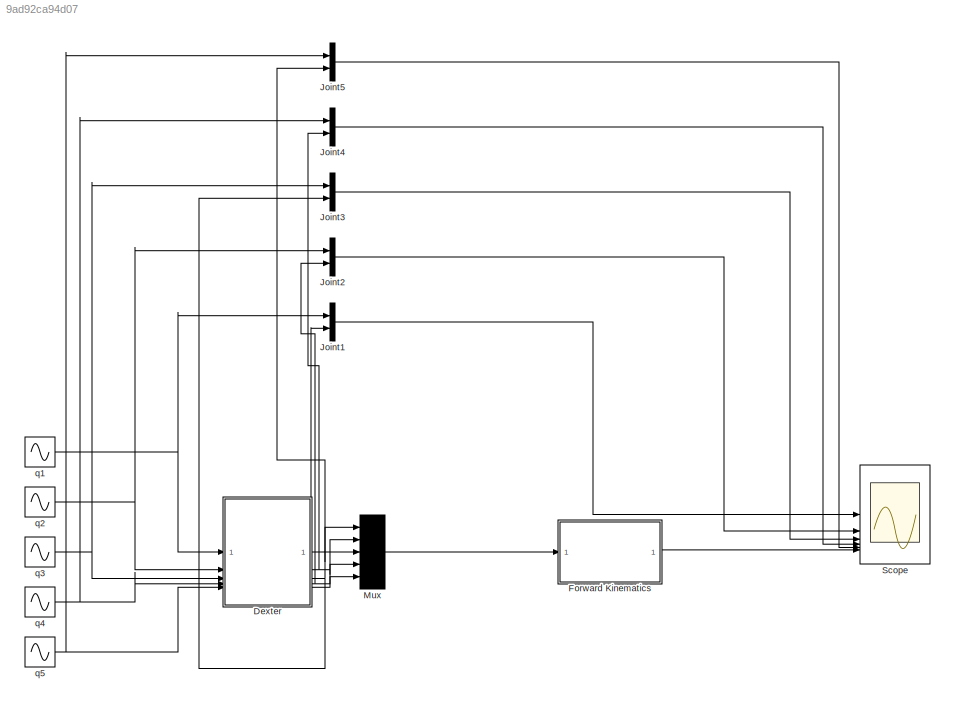
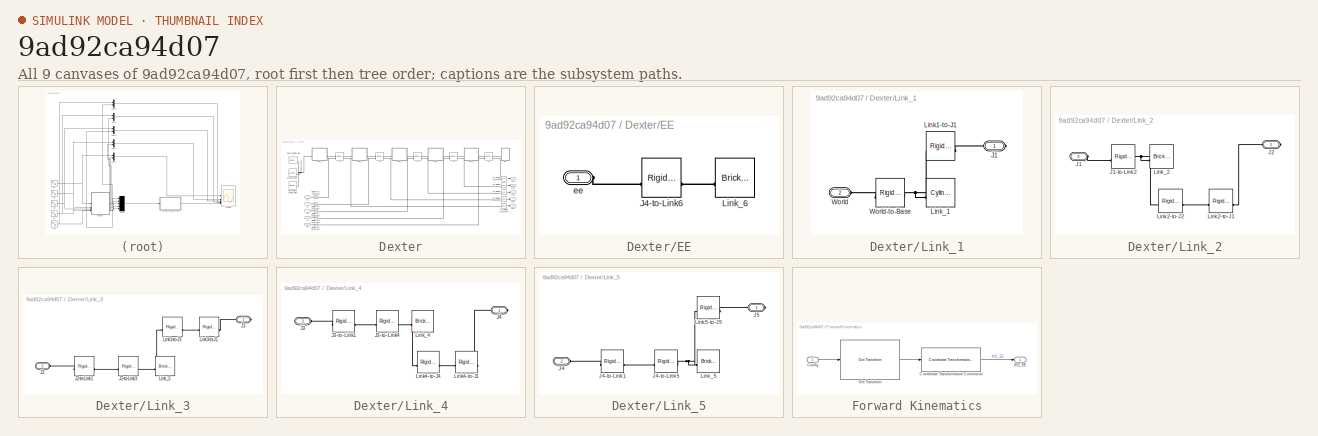
[diagram: thumbnail index - all 9 canvases of the model, root first then tree order]
MODEL slx_9ad92ca94d07
KIND model
CONFIG AbsTol = auto
CONFIG EnableMultiTasking = off
CONFIG FixedStep = auto
CONFIG MaxStep = auto
CONFIG MinStep = auto
CONFIG RelTol = 1e-3
CONFIG SampleTimeConstraint = Unconstrained
CONFIG SolverName = VariableStepAuto
CONFIG StartTime = 0.0
CONFIG StopTime = 10.0
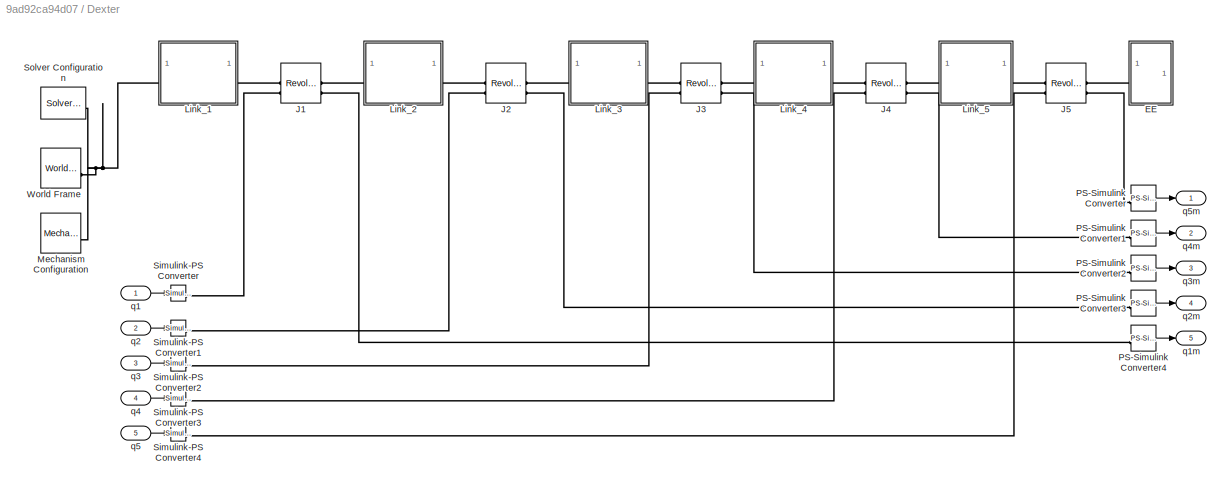
BLOCK [SubSystem] Dexter
BLOCK [SubSystem] Dexter/EE
BLOCK [Reference] Dexter/EE/J4-to-Link6  REF=sm_lib/Frames and
Transforms/Rigid
Transform
  SourceBlock = sm_lib/Frames and\nTransforms/Rigid\nTransform
  SourceType = Rigid\nTransform
BLOCK [Reference] Dexter/EE/Link_6  REF=sm_lib/Body Elements/Brick Solid
  SourceBlock = sm_lib/Body Elements/Brick Solid
  SourceType = Brick Solid
BLOCK [PMIOPort] Dexter/EE/ee
  Side = Left
BLOCK [Reference] Dexter/J1  REF=sm_lib/Joints/Revolute Joint
  SourceBlock = sm_lib/Joints/Revolute Joint
  SourceType = Revolute Joint
BLOCK [Reference] Dexter/J2  REF=sm_lib/Joints/Revolute Joint
  SourceBlock = sm_lib/Joints/Revolute Joint
  SourceType = Revolute Joint
BLOCK [Reference] Dexter/J3  REF=sm_lib/Joints/Revolute Joint
  SourceBlock = sm_lib/Joints/Revolute Joint
  SourceType = Revolute Joint
BLOCK [Reference] Dexter/J4  REF=sm_lib/Joints/Revolute Joint
  SourceBlock = sm_lib/Joints/Revolute Joint
  SourceType = Revolute Joint
BLOCK [Reference] Dexter/J5  REF=sm_lib/Joints/Revolute Joint
  SourceBlock = sm_lib/Joints/Revolute Joint
  SourceType = Revolute Joint
BLOCK [SubSystem] Dexter/Link_1
BLOCK [PMIOPort] Dexter/Link_1/J1
  Side = Right
BLOCK [Reference] Dexter/Link_1/Link1-to-J1  REF=sm_lib/Frames and
Transforms/Rigid
Transform
  SourceBlock = sm_lib/Frames and\nTransforms/Rigid\nTransform
  SourceType = Rigid\nTransform
BLOCK [Reference] Dexter/Link_1/Link_1  REF=sm_lib/Body Elements/Cylindrical Solid
  SourceBlock = sm_lib/Body Elements/Cylindrical Solid
  SourceType = Cylindrical Solid
BLOCK [PMIOPort] Dexter/Link_1/World
  Port = 2
  Side = Left
BLOCK [Reference] Dexter/Link_1/World-to-Base  REF=sm_lib/Frames and
Transforms/Rigid
Transform
  SourceBlock = sm_lib/Frames and\nTransforms/Rigid\nTransform
  SourceType = Rigid\nTransform
BLOCK [SubSystem] Dexter/Link_2
BLOCK [PMIOPort] Dexter/Link_2/J1
  Port = 2
  Side = Left
BLOCK [Reference] Dexter/Link_2/J1-to-Link2  REF=sm_lib/Frames and
Transforms/Rigid
Transform
  SourceBlock = sm_lib/Frames and\nTransforms/Rigid\nTransform
  SourceType = Rigid\nTransform
BLOCK [PMIOPort] Dexter/Link_2/J2
  Side = Right
BLOCK [Reference] Dexter/Link_2/Link2-to-J1  REF=sm_lib/Frames and
Transforms/Rigid
Transform
  SourceBlock = sm_lib/Frames and\nTransforms/Rigid\nTransform
  SourceType = Rigid\nTransform
BLOCK [Reference] Dexter/Link_2/Link2-to-J2  REF=sm_lib/Frames and
Transforms/Rigid
Transform
  SourceBlock = sm_lib/Frames and\nTransforms/Rigid\nTransform
  SourceType = Rigid\nTransform
BLOCK [Reference] Dexter/Link_2/Link_2  REF=sm_lib/Body Elements/Brick Solid
  SourceBlock = sm_lib/Body Elements/Brick Solid
  SourceType = Brick Solid
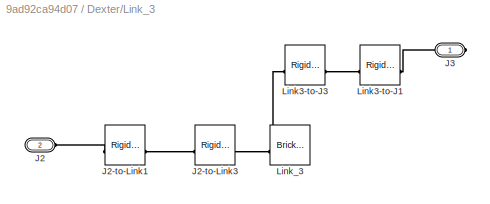
BLOCK [SubSystem] Dexter/Link_3
BLOCK [PMIOPort] Dexter/Link_3/J2
  Port = 2
  Side = Left
BLOCK [Reference] Dexter/Link_3/J2-to-Link1  REF=sm_lib/Frames and
Transforms/Rigid
Transform
  SourceBlock = sm_lib/Frames and\nTransforms/Rigid\nTransform
  SourceType = Rigid\nTransform
BLOCK [Reference] Dexter/Link_3/J2-to-Link3  REF=sm_lib/Frames and
Transforms/Rigid
Transform
  SourceBlock = sm_lib/Frames and\nTransforms/Rigid\nTransform
  SourceType = Rigid\nTransform
BLOCK [PMIOPort] Dexter/Link_3/J3
  Side = Right
BLOCK [Reference] Dexter/Link_3/Link3-to-J1  REF=sm_lib/Frames and
Transforms/Rigid
Transform
  SourceBlock = sm_lib/Frames and\nTransforms/Rigid\nTransform
  SourceType = Rigid\nTransform
BLOCK [Reference] Dexter/Link_3/Link3-to-J3  REF=sm_lib/Frames and
Transforms/Rigid
Transform
  SourceBlock = sm_lib/Frames and\nTransforms/Rigid\nTransform
  SourceType = Rigid\nTransform
BLOCK [Reference] Dexter/Link_3/Link_3  REF=sm_lib/Body Elements/Brick Solid
  SourceBlock = sm_lib/Body Elements/Brick Solid
  SourceType = Brick Solid
BLOCK [SubSystem] Dexter/Link_4
BLOCK [PMIOPort] Dexter/Link_4/J3
  Port = 2
  Side = Left
BLOCK [Reference] Dexter/Link_4/J3-to-Link1  REF=sm_lib/Frames and
Transforms/Rigid
Transform
  SourceBlock = sm_lib/Frames and\nTransforms/Rigid\nTransform
  SourceType = Rigid\nTransform
BLOCK [Reference] Dexter/Link_4/J3-to-Link4  REF=sm_lib/Frames and
Transforms/Rigid
Transform
  SourceBlock = sm_lib/Frames and\nTransforms/Rigid\nTransform
  SourceType = Rigid\nTransform
BLOCK [PMIOPort] Dexter/Link_4/J4
  Side = Right
BLOCK [Reference] Dexter/Link_4/Link4-to-J1  REF=sm_lib/Frames and
Transforms/Rigid
Transform
  SourceBlock = sm_lib/Frames and\nTransforms/Rigid\nTransform
  SourceType = Rigid\nTransform
BLOCK [Reference] Dexter/Link_4/Link4-to-J4  REF=sm_lib/Frames and
Transforms/Rigid
Transform
  SourceBlock = sm_lib/Frames and\nTransforms/Rigid\nTransform
  SourceType = Rigid\nTransform
BLOCK [Reference] Dexter/Link_4/Link_4  REF=sm_lib/Body Elements/Brick Solid
  SourceBlock = sm_lib/Body Elements/Brick Solid
  SourceType = Brick Solid
BLOCK [SubSystem] Dexter/Link_5
BLOCK [PMIOPort] Dexter/Link_5/J4
  Port = 2
  Side = Left
BLOCK [Reference] Dexter/Link_5/J4-to-Link1  REF=sm_lib/Frames and
Transforms/Rigid
Transform
  SourceBlock = sm_lib/Frames and\nTransforms/Rigid\nTransform
  SourceType = Rigid\nTransform
BLOCK [Reference] Dexter/Link_5/J4-to-Link5  REF=sm_lib/Frames and
Transforms/Rigid
Transform
  SourceBlock = sm_lib/Frames and\nTransforms/Rigid\nTransform
  SourceType = Rigid\nTransform
BLOCK [PMIOPort] Dexter/Link_5/J5
  Side = Right
BLOCK [Reference] Dexter/Link_5/Link5-to-J5  REF=sm_lib/Frames and
Transforms/Rigid
Transform
  SourceBlock = sm_lib/Frames and\nTransforms/Rigid\nTransform
  SourceType = Rigid\nTransform
BLOCK [Reference] Dexter/Link_5/Link_5  REF=sm_lib/Body Elements/Brick Solid
  SourceBlock = sm_lib/Body Elements/Brick Solid
  SourceType = Brick Solid
BLOCK [Reference] Dexter/Mechanism Configuration  REF=sm_lib/Utilities/Mechanism
Configuration
  SourceBlock = sm_lib/Utilities/Mechanism\nConfiguration
  SourceType = Mechanism\nConfiguration
BLOCK [Reference] Dexter/PS-Simulink Converter  REF=nesl_utility/PS-Simulink
Converter
  SourceBlock = nesl_utility/PS-Simulink\nConverter
  SourceType = PS-Simulink\nConverter
BLOCK [Reference] Dexter/PS-Simulink Converter1  REF=nesl_utility/PS-Simulink
Converter
  SourceBlock = nesl_utility/PS-Simulink\nConverter
  SourceType = PS-Simulink\nConverter
BLOCK [Reference] Dexter/PS-Simulink Converter2  REF=nesl_utility/PS-Simulink
Converter
  SourceBlock = nesl_utility/PS-Simulink\nConverter
  SourceType = PS-Simulink\nConverter
BLOCK [Reference] Dexter/PS-Simulink Converter3  REF=nesl_utility/PS-Simulink
Converter
  SourceBlock = nesl_utility/PS-Simulink\nConverter
  SourceType = PS-Simulink\nConverter
BLOCK [Reference] Dexter/PS-Simulink Converter4  REF=nesl_utility/PS-Simulink
Converter
  SourceBlock = nesl_utility/PS-Simulink\nConverter
  SourceType = PS-Simulink\nConverter
BLOCK [Reference] Dexter/Simulink-PS Converter  REF=nesl_utility/Simulink-PS
Converter
  SourceBlock = nesl_utility/Simulink-PS\nConverter
  SourceType = Simulink-PS\nConverter
BLOCK [Reference] Dexter/Simulink-PS Converter1  REF=nesl_utility/Simulink-PS
Converter
  SourceBlock = nesl_utility/Simulink-PS\nConverter
  SourceType = Simulink-PS\nConverter
BLOCK [Reference] Dexter/Simulink-PS Converter2  REF=nesl_utility/Simulink-PS
Converter
  SourceBlock = nesl_utility/Simulink-PS\nConverter
  SourceType = Simulink-PS\nConverter
BLOCK [Reference] Dexter/Simulink-PS Converter3  REF=nesl_utility/Simulink-PS
Converter
  SourceBlock = nesl_utility/Simulink-PS\nConverter
  SourceType = Simulink-PS\nConverter
BLOCK [Reference] Dexter/Simulink-PS Converter4  REF=nesl_utility/Simulink-PS
Converter
  SourceBlock = nesl_utility/Simulink-PS\nConverter
  SourceType = Simulink-PS\nConverter
BLOCK [Reference] Dexter/Solver Configuration  REF=nesl_utility/Solver
Configuration
  SourceBlock = nesl_utility/Solver\nConfiguration
  SourceType = Solver\nConfiguration
BLOCK [Reference] Dexter/World Frame  REF=sm_lib/Frames and
Transforms/World Frame
  SourceBlock = sm_lib/Frames and\nTransforms/World Frame
  SourceType = World Frame
BLOCK [Inport] Dexter/q1
BLOCK [Outport] Dexter/q1m
  Port = 5
BLOCK [Inport] Dexter/q2
  Port = 2
BLOCK [Outport] Dexter/q2m
  Port = 4
BLOCK [Inport] Dexter/q3
  Port = 3
BLOCK [Outport] Dexter/q3m
  Port = 3
BLOCK [Inport] Dexter/q4
  Port = 4
BLOCK [Outport] Dexter/q4m
  Port = 2
BLOCK [Inport] Dexter/q5
  Port = 5
BLOCK [Outport] Dexter/q5m
BLOCK [SubSystem] Forward Kinematics
BLOCK [Inport] Forward Kinematics/Config
BLOCK [Reference] Forward Kinematics/Coordinate Transformation Conversion  REF=robotcorelib/Coordinate Transformation Conversion
  LibrarySourceBlock = robotutilslib/Coordinate Transformation Conversion
  SourceBlock = robotcorelib/Coordinate Transformation Conversion
  SourceType = robotics.slcore.internal.block.CoordinateTransformationConversion
BLOCK [Reference] Forward Kinematics/Get Transform  REF=robotmaniplib/Get Transform
  SourceBlock = robotmaniplib/Get Transform
  SourceType = Get Transform
BLOCK [Outport] Forward Kinematics/XYZ_EE
BLOCK [Mux] Joint1
  DisplayOption = bar
  Inputs = 2
BLOCK [Mux] Joint2
  DisplayOption = bar
  Inputs = 2
BLOCK [Mux] Joint3
  DisplayOption = bar
  Inputs = 2
BLOCK [Mux] Joint4
  DisplayOption = bar
  Inputs = 2
BLOCK [Mux] Joint5
  DisplayOption = bar
  Inputs = 2
BLOCK [Mux] Mux
  DisplayOption = bar
  Inputs = 5
BLOCK [Scope] Scope
  Floating = off
  NumInputPorts = 6
  ScopeSpecificationString = Simulink.scopes.TimeScopeBlockCfg('CurrentConfiguration', extmgr.ConfigurationSet(extmgr.Configuration('Core','General UI',true),extmgr.Configuration('Core','Source UI',true),extmgr.Configuration('Sources','WiredSimulink',true),extmgr.Configuration('Visuals','Time Domain',true,'SerializedDisplays',{struct('MinYLimReal','-7.75','MaxYLimReal','7.75','YLabelReal','','MinYLimMag','0.00000','MaxYLimMag...<+5446ch>
BLOCK [Sin] q1
  Amplitude = 5.5
  SampleTime = 0
BLOCK [Sin] q2
  Amplitude = 5.5
  Frequency = 0.7
  SampleTime = 0
BLOCK [Sin] q3
  Amplitude = 5.5
  Frequency = 0.7
  SampleTime = 0
BLOCK [Sin] q4
  Amplitude = 5.5
  Frequency = 0.5
  SampleTime = 0
BLOCK [Sin] q5
  Amplitude = 5.5
  SampleTime = 0
LINE Dexter/PS-Simulink Converter1:1 -> Dexter/q4m:1
LINE Dexter/PS-Simulink Converter2:1 -> Dexter/q3m:1
LINE Dexter/PS-Simulink Converter3:1 -> Dexter/q2m:1
LINE Dexter/PS-Simulink Converter4:1 -> Dexter/q1m:1
LINE Dexter/PS-Simulink Converter:1 -> Dexter/q5m:1
LINE Dexter/q1:1 -> Dexter/Simulink-PS Converter:1
LINE Dexter/q2:1 -> Dexter/Simulink-PS Converter1:1
LINE Dexter/q3:1 -> Dexter/Simulink-PS Converter2:1
LINE Dexter/q4:1 -> Dexter/Simulink-PS Converter3:1
LINE Dexter/q5:1 -> Dexter/Simulink-PS Converter4:1
NET Dexter:1 -> Joint5:2, Mux:1
NET Dexter:2 -> Joint4:2, Mux:2
NET Dexter:3 -> Joint3:2, Mux:3
NET Dexter:4 -> Joint2:2, Mux:4
NET Dexter:5 -> Joint1:2, Mux:5
LINE Forward Kinematics/Config:1 -> Forward Kinematics/Get Transform:1
LINE Forward Kinematics/Coordinate Transformation Conversion:1 -> Forward Kinematics/XYZ_EE:1
LINE Forward Kinematics/Get Transform:1 -> Forward Kinematics/Coordinate Transformation Conversion:1
LINE Forward Kinematics:1 -> Scope:6
LINE Joint1:1 -> Scope:1
LINE Joint2:1 -> Scope:2
LINE Joint3:1 -> Scope:3
LINE Joint4:1 -> Scope:4
LINE Joint5:1 -> Scope:5
LINE Mux:1 -> Forward Kinematics:1
NET q1:1 -> Dexter:1, Joint1:1
NET q2:1 -> Dexter:2, Joint2:1
NET q3:1 -> Dexter:3, Joint3:1
NET q4:1 -> Dexter:4, Joint4:1
NET q5:1 -> Dexter:5, Joint5:1
PLINE Dexter/EE/J4-to-Link6:LConn1 -- Dexter/EE/ee:RConn1
PLINE Dexter/EE/J4-to-Link6:RConn1 -- Dexter/EE/Link_6:RConn1
PLINE Dexter/EE:LConn1 -- Dexter/J5:RConn1
PLINE Dexter/J1:LConn1 -- Dexter/Link_1:RConn1
PLINE Dexter/J1:LConn2 -- Dexter/Simulink-PS Converter:RConn1
PLINE Dexter/J1:RConn1 -- Dexter/Link_2:LConn1
PLINE Dexter/J1:RConn2 -- Dexter/PS-Simulink Converter4:LConn1
PLINE Dexter/J2:LConn1 -- Dexter/Link_2:RConn1
PLINE Dexter/J2:LConn2 -- Dexter/Simulink-PS Converter1:RConn1
PLINE Dexter/J2:RConn1 -- Dexter/Link_3:LConn1
PLINE Dexter/J2:RConn2 -- Dexter/PS-Simulink Converter3:LConn1
PLINE Dexter/J3:LConn1 -- Dexter/Link_3:RConn1
PLINE Dexter/J3:LConn2 -- Dexter/Simulink-PS Converter2:RConn1
PLINE Dexter/J3:RConn1 -- Dexter/Link_4:LConn1
PLINE Dexter/J3:RConn2 -- Dexter/PS-Simulink Converter2:LConn1
PLINE Dexter/J4:LConn1 -- Dexter/Link_4:RConn1
PLINE Dexter/J4:LConn2 -- Dexter/Simulink-PS Converter3:RConn1
PLINE Dexter/J4:RConn1 -- Dexter/Link_5:LConn1
PLINE Dexter/J4:RConn2 -- Dexter/PS-Simulink Converter1:LConn1
PLINE Dexter/J5:LConn1 -- Dexter/Link_5:RConn1
PLINE Dexter/J5:LConn2 -- Dexter/Simulink-PS Converter4:RConn1
PLINE Dexter/J5:RConn2 -- Dexter/PS-Simulink Converter:LConn1
PLINE Dexter/Link_1/J1:RConn1 -- Dexter/Link_1/Link1-to-J1:RConn1
PNET net1: Dexter/Link_1/Link1-to-J1:LConn1 -- Dexter/Link_1/Link_1:RConn1 -- Dexter/Link_1/World-to-Base:RConn1
PLINE Dexter/Link_1/World-to-Base:LConn1 -- Dexter/Link_1/World:RConn1
PNET net2: Dexter/Link_1:LConn1 -- Dexter/Mechanism Configuration:RConn1 -- Dexter/Solver Configuration:RConn1 -- Dexter/World Frame:RConn1
PLINE Dexter/Link_2/J1-to-Link2:LConn1 -- Dexter/Link_2/J1:RConn1
PNET net3: Dexter/Link_2/J1-to-Link2:RConn1 -- Dexter/Link_2/Link2-to-J2:LConn1 -- Dexter/Link_2/Link_2:RConn1
PLINE Dexter/Link_2/J2:RConn1 -- Dexter/Link_2/Link2-to-J1:RConn1
PLINE Dexter/Link_2/Link2-to-J1:LConn1 -- Dexter/Link_2/Link2-to-J2:RConn1
PLINE Dexter/Link_3/J2-to-Link1:LConn1 -- Dexter/Link_3/J2:RConn1
PLINE Dexter/Link_3/J2-to-Link1:RConn1 -- Dexter/Link_3/J2-to-Link3:LConn1
PNET net4: Dexter/Link_3/J2-to-Link3:RConn1 -- Dexter/Link_3/Link3-to-J3:LConn1 -- Dexter/Link_3/Link_3:RConn1
PLINE Dexter/Link_3/J3:RConn1 -- Dexter/Link_3/Link3-to-J1:RConn1
PLINE Dexter/Link_3/Link3-to-J1:LConn1 -- Dexter/Link_3/Link3-to-J3:RConn1
PLINE Dexter/Link_4/J3-to-Link1:LConn1 -- Dexter/Link_4/J3:RConn1
PLINE Dexter/Link_4/J3-to-Link1:RConn1 -- Dexter/Link_4/J3-to-Link4:LConn1
PNET net5: Dexter/Link_4/J3-to-Link4:RConn1 -- Dexter/Link_4/Link4-to-J4:LConn1 -- Dexter/Link_4/Link_4:RConn1
PLINE Dexter/Link_4/J4:RConn1 -- Dexter/Link_4/Link4-to-J1:RConn1
PLINE Dexter/Link_4/Link4-to-J1:LConn1 -- Dexter/Link_4/Link4-to-J4:RConn1
PLINE Dexter/Link_5/J4-to-Link1:LConn1 -- Dexter/Link_5/J4:RConn1
PLINE Dexter/Link_5/J4-to-Link1:RConn1 -- Dexter/Link_5/J4-to-Link5:LConn1
PNET net6: Dexter/Link_5/J4-to-Link5:RConn1 -- Dexter/Link_5/Link5-to-J5:LConn1 -- Dexter/Link_5/Link_5:RConn1
PLINE Dexter/Link_5/J5:RConn1 -- Dexter/Link_5/Link5-to-J5:RConn1
note: NET lines group one-source signal fan-out (src -> all destinations, sorted); 1:1 wires keep LINE; PNET lines group multi-terminal physical nets as a canonical sorted terminal list (undirected conserving connections); 2-terminal nets keep the pairwise PLINE form
